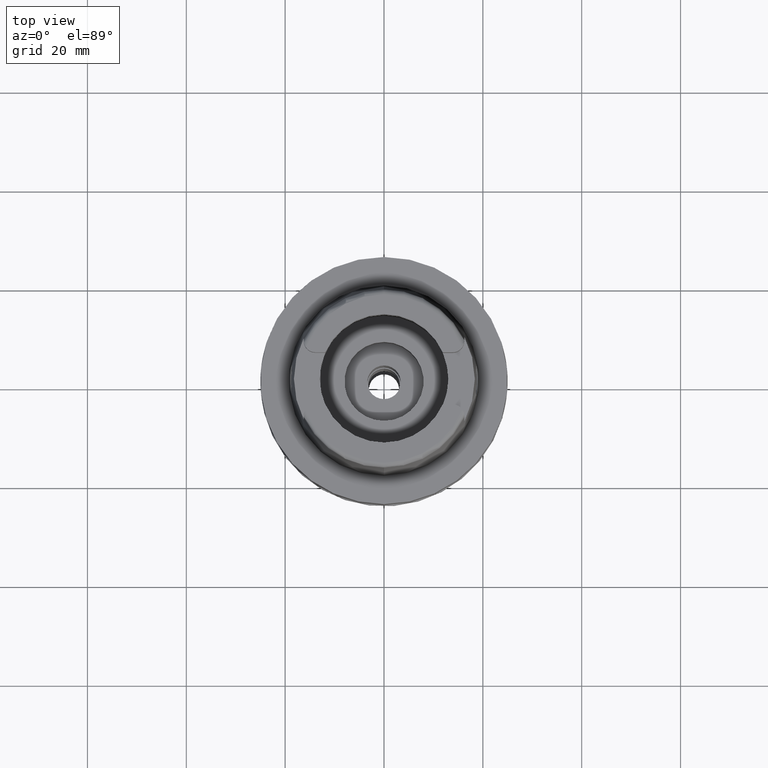
[diagram: clean part render]
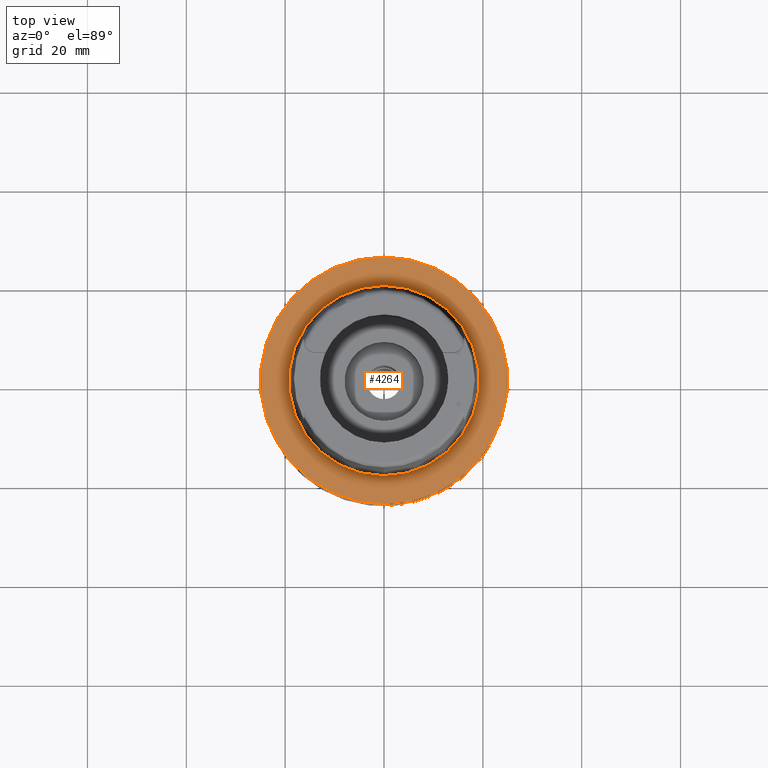
[diagram: same view with one face highlighted and labeled with its STEP entity id]
A machine part, top view. The second image highlights one B-rep face of the part: STEP entity #4264.
In plain terms, the highlighted planar face has unit normal (0, 0, 1).
Its self-contained STEP definition (entity closure, byte-faithful):
#123 = DIRECTION ( 'NONE',  ( 0.0000000000000000000, 1.000000000000000000, 0.0000000000000000000 ) ) ;
#143 = FACE_OUTER_BOUND ( 'NONE', #1210, .T. ) ;
#514 = CARTESIAN_POINT ( 'NONE',  ( 0.0000000000000000000, 0.0000000000000000000, 1.705302565823999875E-13 ) ) ;
#530 = CARTESIAN_POINT ( 'NONE',  ( 0.0000000000000000000, 0.0000000000000000000, 1.705302565823999875E-13 ) ) ;
#558 = DIRECTION ( 'NONE',  ( 0.0000000000000000000, 0.0000000000000000000, -1.000000000000000000 ) ) ;
#629 = AXIS2_PLACEMENT_3D ( 'NONE', #3826, #855, #831 ) ;
#678 = CARTESIAN_POINT ( 'NONE',  ( 0.0000000000000000000, -19.24999954279000036, 3.907985046680999726E-14 ) ) ;
#691 = PLANE ( 'NONE',  #1146 ) ;
#831 = DIRECTION ( 'NONE',  ( 0.0000000000000000000, -1.000000000000000000, 0.0000000000000000000 ) ) ;
#855 = DIRECTION ( 'NONE',  ( 0.0000000000000000000, 0.0000000000000000000, 1.000000000000000000 ) ) ;
#1098 = AXIS2_PLACEMENT_3D ( 'NONE', #3017, #3042, #4021 ) ;
#1146 = AXIS2_PLACEMENT_3D ( 'NONE', #4369, #4412, #3883 ) ;
#1210 = EDGE_LOOP ( 'NONE', ( #3762, #2314 ) ) ;
#1539 = VERTEX_POINT ( 'NONE', #4544 ) ;
#1634 = EDGE_LOOP ( 'NONE', ( #3417, #4506 ) ) ;
#1813 = VERTEX_POINT ( 'NONE', #678 ) ;
#2059 = DIRECTION ( 'NONE',  ( 0.0000000000000000000, -1.000000000000000000, 0.0000000000000000000 ) ) ;
#2081 = VERTEX_POINT ( 'NONE', #5171 ) ;
#2314 = ORIENTED_EDGE ( 'NONE', *, *, #5293, .F. ) ;
#2350 = VERTEX_POINT ( 'NONE', #2380 ) ;
#2380 = CARTESIAN_POINT ( 'NONE',  ( 0.0000000000000000000, 19.24999954279000036, -1.136868377215999875E-13 ) ) ;
#2685 = AXIS2_PLACEMENT_3D ( 'NONE', #514, #3291, #2059 ) ;
#2869 = CIRCLE ( 'NONE', #2685, 25.00000000000000000 ) ;
#3017 = CARTESIAN_POINT ( 'NONE',  ( 0.0000000000000000000, 0.0000000000000000000, -1.136868377215999875E-13 ) ) ;
#3042 = DIRECTION ( 'NONE',  ( 0.0000000000000000000, 0.0000000000000000000, 1.000000000000000000 ) ) ;
#3049 = EDGE_CURVE ( 'NONE', #1539, #2081, #3724, .T. ) ;
#3091 = AXIS2_PLACEMENT_3D ( 'NONE', #530, #558, #123 ) ;
#3102 = FACE_BOUND ( 'NONE', #1634, .T. ) ;
#3291 = DIRECTION ( 'NONE',  ( 0.0000000000000000000, 0.0000000000000000000, -1.000000000000000000 ) ) ;
#3417 = ORIENTED_EDGE ( 'NONE', *, *, #3576, .F. ) ;
#3576 = EDGE_CURVE ( 'NONE', #2350, #1813, #5177, .T. ) ;
#3724 = CIRCLE ( 'NONE', #3091, 25.00000000000000000 ) ;
#3762 = ORIENTED_EDGE ( 'NONE', *, *, #3049, .F. ) ;
#3826 = CARTESIAN_POINT ( 'NONE',  ( 0.0000000000000000000, 0.0000000000000000000, -1.136868377215999875E-13 ) ) ;
#3883 = DIRECTION ( 'NONE',  ( 1.000000000000000000, 0.0000000000000000000, 0.0000000000000000000 ) ) ;
#4021 = DIRECTION ( 'NONE',  ( 0.0000000000000000000, 1.000000000000000000, 0.0000000000000000000 ) ) ;
#4264 = ADVANCED_FACE ( 'NONE', ( #143, #3102 ), #691, .T. ) ;
#4369 = CARTESIAN_POINT ( 'NONE',  ( 0.0000000000000000000, 0.0000000000000000000, 0.0000000000000000000 ) ) ;
#4412 = DIRECTION ( 'NONE',  ( 0.0000000000000000000, 0.0000000000000000000, 1.000000000000000000 ) ) ;
#4506 = ORIENTED_EDGE ( 'NONE', *, *, #4711, .F. ) ;
#4544 = CARTESIAN_POINT ( 'NONE',  ( 0.0000000000000000000, 25.00000000000000000, 1.042129345780999972E-13 ) ) ;
#4711 = EDGE_CURVE ( 'NONE', #1813, #2350, #5323, .T. ) ;
#5171 = CARTESIAN_POINT ( 'NONE',  ( 0.0000000000000000000, -25.00000000000000000, 1.705302565823999875E-13 ) ) ;
#5177 = CIRCLE ( 'NONE', #1098, 19.24999954279000036 ) ;
#5293 = EDGE_CURVE ( 'NONE', #2081, #1539, #2869, .T. ) ;
#5323 = CIRCLE ( 'NONE', #629, 19.24999954279000036 ) ;